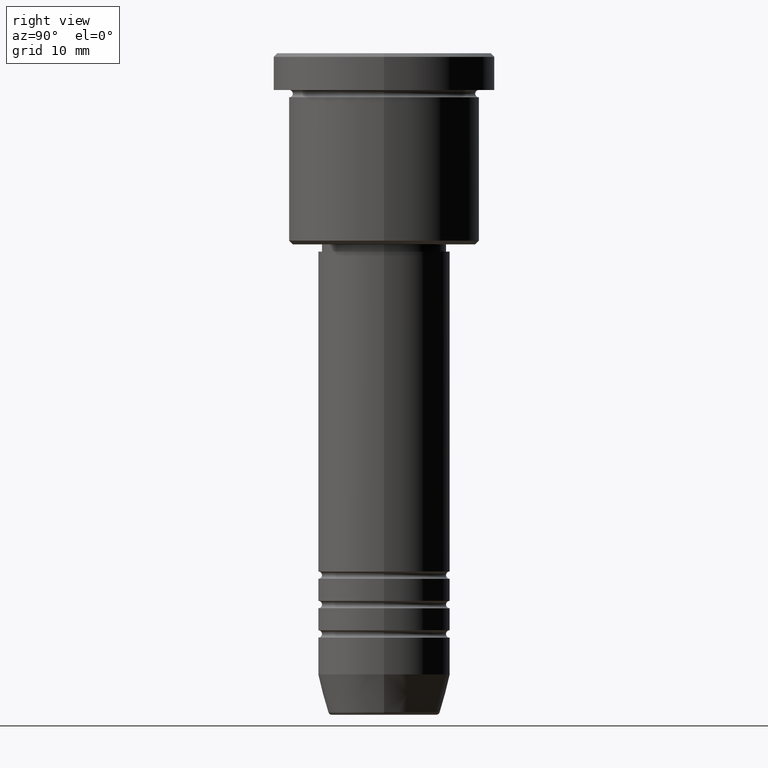
[diagram: clean part render]
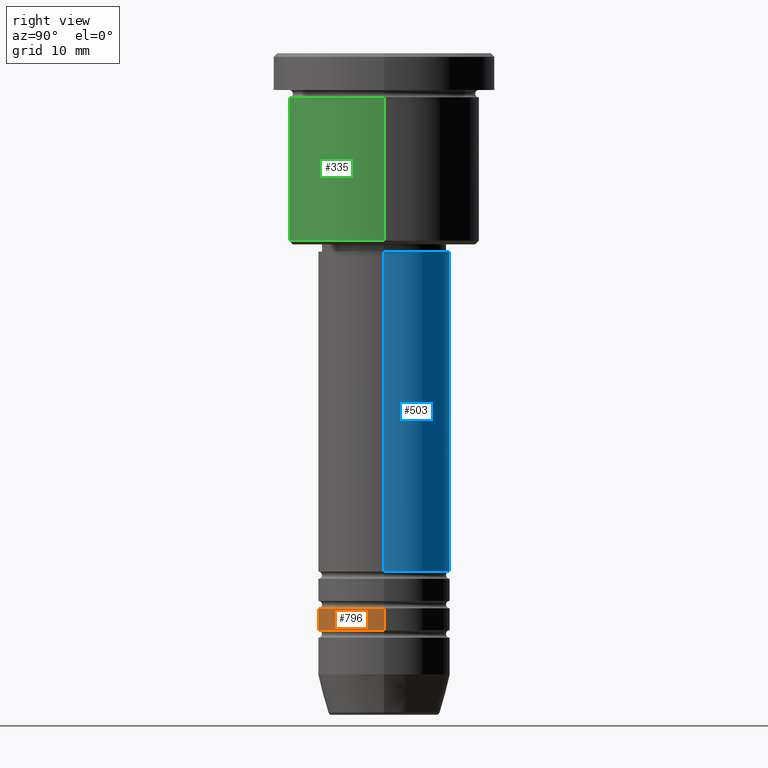
[diagram: same view with three faces highlighted in distinct colors, each labeled with its STEP entity id]
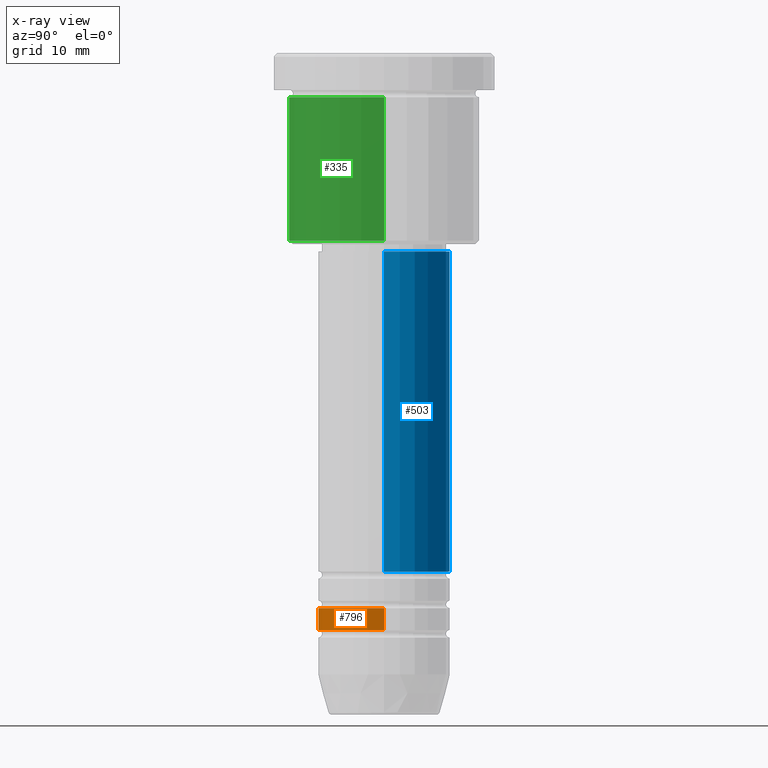
[diagram: x-ray of the same camera — body ghosted, the three highlighted faces saturated]
A machine part, right view with three faces highlighted in distinct colors.
The next image is the same camera in x-ray (body ghosted, the three faces saturated) — at least one of them is partly hidden behind the body in this view.
Their STEP definitions:

[orange] entity #796 — the highlighted cylindrical surface (partial cylindrical patch) has radius 9 mm, axis along (-0, -0, 1).
#12 = VERTEX_POINT ( 'NONE', #69 ) ;
#23 = DIRECTION ( 'NONE',  ( -0.000000000000000000, -0.000000000000000000, 1.000000000000000000 ) ) ;
#29 = CIRCLE ( 'NONE', #155, 9.000000000000000000 ) ;
#69 = CARTESIAN_POINT ( 'NONE',  ( 9.000000000000000000, 0.000000000000000000, -75.49999999999998579 ) ) ;
#81 = VECTOR ( 'NONE', #23, 1000.000000000000000 ) ;
#127 = CARTESIAN_POINT ( 'NONE',  ( -9.000000000000001776, 1.102182119232617911E-15, -78.49999999999997158 ) ) ;
#155 = AXIS2_PLACEMENT_3D ( 'NONE', #278, #361, #365 ) ;
#234 = CIRCLE ( 'NONE', #773, 9.000000000000001776 ) ;
#249 = VERTEX_POINT ( 'NONE', #127 ) ;
#278 = CARTESIAN_POINT ( 'NONE',  ( 0.000000000000000000, 0.000000000000000000, -75.49999999999998579 ) ) ;
#353 = DIRECTION ( 'NONE',  ( -0.000000000000000000, -0.000000000000000000, 1.000000000000000000 ) ) ;
#361 = DIRECTION ( 'NONE',  ( -0.000000000000000000, -0.000000000000000000, 1.000000000000000000 ) ) ;
#365 = DIRECTION ( 'NONE',  ( 1.000000000000000000, 0.000000000000000000, 0.000000000000000000 ) ) ;
#378 = CARTESIAN_POINT ( 'NONE',  ( -9.000000000000001776, 1.102182119232617911E-15, 0.000000000000000000 ) ) ;
#505 = FACE_OUTER_BOUND ( 'NONE', #1121, .T. ) ;
#515 = VERTEX_POINT ( 'NONE', #895 ) ;
#571 = CARTESIAN_POINT ( 'NONE',  ( 9.000000000000001776, 0.000000000000000000, -78.49999999999997158 ) ) ;
#581 = CARTESIAN_POINT ( 'NONE',  ( 0.000000000000000000, 0.000000000000000000, 0.000000000000000000 ) ) ;
#586 = EDGE_CURVE ( 'NONE', #515, #12, #29, .T. ) ;
#672 = ORIENTED_EDGE ( 'NONE', *, *, #1034, .T. ) ;
#705 = LINE ( 'NONE', #912, #987 ) ;
#720 = VERTEX_POINT ( 'NONE', #571 ) ;
#727 = CARTESIAN_POINT ( 'NONE',  ( 0.000000000000000000, 0.000000000000000000, -78.49999999999997158 ) ) ;
#773 = AXIS2_PLACEMENT_3D ( 'NONE', #727, #353, #998 ) ;
#796 = ADVANCED_FACE ( 'NONE', ( #505 ), #1074, .T. ) ;
#802 = DIRECTION ( 'NONE',  ( -0.000000000000000000, -0.000000000000000000, 1.000000000000000000 ) ) ;
#821 = ORIENTED_EDGE ( 'NONE', *, *, #1115, .F. ) ;
#863 = DIRECTION ( 'NONE',  ( 1.000000000000000000, 0.000000000000000000, 0.000000000000000000 ) ) ;
#895 = CARTESIAN_POINT ( 'NONE',  ( -9.000000000000000000, 1.102182119232617714E-15, -75.49999999999998579 ) ) ;
#912 = CARTESIAN_POINT ( 'NONE',  ( 9.000000000000001776, 0.000000000000000000, 0.000000000000000000 ) ) ;
#928 = AXIS2_PLACEMENT_3D ( 'NONE', #581, #1061, #863 ) ;
#981 = EDGE_CURVE ( 'NONE', #249, #720, #234, .T. ) ;
#987 = VECTOR ( 'NONE', #802, 1000.000000000000000 ) ;
#995 = ORIENTED_EDGE ( 'NONE', *, *, #981, .T. ) ;
#998 = DIRECTION ( 'NONE',  ( 1.000000000000000000, 0.000000000000000000, 0.000000000000000000 ) ) ;
#1008 = LINE ( 'NONE', #378, #81 ) ;
#1034 = EDGE_CURVE ( 'NONE', #720, #12, #705, .T. ) ;
#1061 = DIRECTION ( 'NONE',  ( -0.000000000000000000, -0.000000000000000000, 1.000000000000000000 ) ) ;
#1074 = CYLINDRICAL_SURFACE ( 'NONE', #928, 9.000000000000001776 ) ;
#1089 = ORIENTED_EDGE ( 'NONE', *, *, #586, .F. ) ;
#1115 = EDGE_CURVE ( 'NONE', #249, #515, #1008, .T. ) ;
#1121 = EDGE_LOOP ( 'NONE', ( #821, #995, #672, #1089 ) ) ;

[blue] entity #503 — the highlighted cylindrical surface (partial cylindrical patch) has radius 9 mm, axis along (-0, -0, 1).
#27 = AXIS2_PLACEMENT_3D ( 'NONE', #815, #619, #527 ) ;
#41 = EDGE_CURVE ( 'NONE', #44, #524, #951, .T. ) ;
#44 = VERTEX_POINT ( 'NONE', #1051 ) ;
#48 = CIRCLE ( 'NONE', #578, 9.000000000000001776 ) ;
#107 = ORIENTED_EDGE ( 'NONE', *, *, #567, .F. ) ;
#175 = CYLINDRICAL_SURFACE ( 'NONE', #27, 9.000000000000000000 ) ;
#216 = DIRECTION ( 'NONE',  ( 1.000000000000000000, 0.000000000000000000, 0.000000000000000000 ) ) ;
#217 = CARTESIAN_POINT ( 'NONE',  ( -9.000000000000000000, 1.102182119232617714E-15, 0.000000000000000000 ) ) ;
#225 = ORIENTED_EDGE ( 'NONE', *, *, #1118, .T. ) ;
#288 = CARTESIAN_POINT ( 'NONE',  ( 9.000000000000000000, 0.000000000000000000, 0.000000000000000000 ) ) ;
#294 = CARTESIAN_POINT ( 'NONE',  ( 0.000000000000000000, 0.000000000000000000, -70.49999999999998579 ) ) ;
#386 = DIRECTION ( 'NONE',  ( -0.000000000000000000, -0.000000000000000000, 1.000000000000000000 ) ) ;
#393 = AXIS2_PLACEMENT_3D ( 'NONE', #921, #1016, #216 ) ;
#405 = DIRECTION ( 'NONE',  ( -0.000000000000000000, -0.000000000000000000, 1.000000000000000000 ) ) ;
#430 = CARTESIAN_POINT ( 'NONE',  ( 9.000000000000001776, 0.000000000000000000, -70.49999999999998579 ) ) ;
#460 = ORIENTED_EDGE ( 'NONE', *, *, #41, .T. ) ;
#494 = VERTEX_POINT ( 'NONE', #430 ) ;
#503 = ADVANCED_FACE ( 'NONE', ( #1100 ), #175, .T. ) ;
#524 = VERTEX_POINT ( 'NONE', #533 ) ;
#527 = DIRECTION ( 'NONE',  ( 1.000000000000000000, 0.000000000000000000, 0.000000000000000000 ) ) ;
#533 = CARTESIAN_POINT ( 'NONE',  ( -8.999999999999998224, 1.102182119232617714E-15, -26.99999999999999645 ) ) ;
#542 = CARTESIAN_POINT ( 'NONE',  ( 8.999999999999998224, 0.000000000000000000, -26.99999999999999645 ) ) ;
#555 = EDGE_LOOP ( 'NONE', ( #225, #460, #593, #107 ) ) ;
#567 = EDGE_CURVE ( 'NONE', #494, #1109, #800, .T. ) ;
#578 = AXIS2_PLACEMENT_3D ( 'NONE', #294, #386, #733 ) ;
#593 = ORIENTED_EDGE ( 'NONE', *, *, #710, .F. ) ;
#619 = DIRECTION ( 'NONE',  ( -0.000000000000000000, -0.000000000000000000, 1.000000000000000000 ) ) ;
#655 = CIRCLE ( 'NONE', #393, 8.999999999999998224 ) ;
#694 = VECTOR ( 'NONE', #405, 1000.000000000000000 ) ;
#710 = EDGE_CURVE ( 'NONE', #1109, #524, #655, .T. ) ;
#733 = DIRECTION ( 'NONE',  ( 1.000000000000000000, 0.000000000000000000, 0.000000000000000000 ) ) ;
#800 = LINE ( 'NONE', #288, #1130 ) ;
#803 = DIRECTION ( 'NONE',  ( -0.000000000000000000, -0.000000000000000000, 1.000000000000000000 ) ) ;
#815 = CARTESIAN_POINT ( 'NONE',  ( 0.000000000000000000, 0.000000000000000000, 0.000000000000000000 ) ) ;
#921 = CARTESIAN_POINT ( 'NONE',  ( 0.000000000000000000, 0.000000000000000000, -26.99999999999999645 ) ) ;
#951 = LINE ( 'NONE', #217, #694 ) ;
#1016 = DIRECTION ( 'NONE',  ( -0.000000000000000000, -0.000000000000000000, 1.000000000000000000 ) ) ;
#1051 = CARTESIAN_POINT ( 'NONE',  ( -9.000000000000001776, 1.102182119232617911E-15, -70.49999999999998579 ) ) ;
#1100 = FACE_OUTER_BOUND ( 'NONE', #555, .T. ) ;
#1109 = VERTEX_POINT ( 'NONE', #542 ) ;
#1118 = EDGE_CURVE ( 'NONE', #494, #44, #48, .T. ) ;
#1130 = VECTOR ( 'NONE', #803, 1000.000000000000000 ) ;

[green] entity #335 — the highlighted cylindrical surface (partial cylindrical patch) has radius 13 mm, axis along (-0, -0, 1).
#28 = VERTEX_POINT ( 'NONE', #1038 ) ;
#70 = DIRECTION ( 'NONE',  ( -1.000000000000000000, 0.000000000000000000, 0.000000000000000000 ) ) ;
#131 = ORIENTED_EDGE ( 'NONE', *, *, #795, .T. ) ;
#206 = CARTESIAN_POINT ( 'NONE',  ( 0.000000000000000000, 0.000000000000000000, 0.000000000000000000 ) ) ;
#240 = CARTESIAN_POINT ( 'NONE',  ( -13.00000000000000178, 1.592040838891559293E-15, -5.999999999999999112 ) ) ;
#268 = VECTOR ( 'NONE', #708, 1000.000000000000000 ) ;
#335 = ADVANCED_FACE ( 'NONE', ( #389 ), #753, .T. ) ;
#387 = DIRECTION ( 'NONE',  ( -0.000000000000000000, -0.000000000000000000, 1.000000000000000000 ) ) ;
#389 = FACE_OUTER_BOUND ( 'NONE', #1079, .T. ) ;
#480 = LINE ( 'NONE', #654, #848 ) ;
#501 = VERTEX_POINT ( 'NONE', #1178 ) ;
#516 = DIRECTION ( 'NONE',  ( -0.000000000000000000, -0.000000000000000000, 1.000000000000000000 ) ) ;
#576 = DIRECTION ( 'NONE',  ( 1.000000000000000000, 0.000000000000000000, 0.000000000000000000 ) ) ;
#602 = EDGE_CURVE ( 'NONE', #501, #881, #724, .T. ) ;
#614 = AXIS2_PLACEMENT_3D ( 'NONE', #1163, #516, #70 ) ;
#652 = VERTEX_POINT ( 'NONE', #932 ) ;
#654 = CARTESIAN_POINT ( 'NONE',  ( 13.00000000000000178, 0.000000000000000000, 0.000000000000000000 ) ) ;
#667 = EDGE_CURVE ( 'NONE', #28, #652, #480, .T. ) ;
#707 = EDGE_CURVE ( 'NONE', #881, #652, #806, .T. ) ;
#708 = DIRECTION ( 'NONE',  ( -0.000000000000000000, -0.000000000000000000, 1.000000000000000000 ) ) ;
#724 = LINE ( 'NONE', #899, #268 ) ;
#737 = CARTESIAN_POINT ( 'NONE',  ( 0.000000000000000000, 0.000000000000000000, -5.999999999999999112 ) ) ;
#753 = CYLINDRICAL_SURFACE ( 'NONE', #984, 13.00000000000000178 ) ;
#779 = ORIENTED_EDGE ( 'NONE', *, *, #667, .T. ) ;
#795 = EDGE_CURVE ( 'NONE', #501, #28, #945, .T. ) ;
#806 = CIRCLE ( 'NONE', #909, 13.00000000000000178 ) ;
#835 = DIRECTION ( 'NONE',  ( -0.000000000000000000, -0.000000000000000000, 1.000000000000000000 ) ) ;
#848 = VECTOR ( 'NONE', #835, 1000.000000000000000 ) ;
#881 = VERTEX_POINT ( 'NONE', #240 ) ;
#899 = CARTESIAN_POINT ( 'NONE',  ( -13.00000000000000178, 1.592040838891559293E-15, 0.000000000000000000 ) ) ;
#909 = AXIS2_PLACEMENT_3D ( 'NONE', #737, #387, #1114 ) ;
#932 = CARTESIAN_POINT ( 'NONE',  ( 13.00000000000000178, 0.000000000000000000, -5.999999999999999112 ) ) ;
#945 = CIRCLE ( 'NONE', #614, 13.00000000000000178 ) ;
#984 = AXIS2_PLACEMENT_3D ( 'NONE', #206, #1134, #576 ) ;
#1038 = CARTESIAN_POINT ( 'NONE',  ( 13.00000000000000178, 0.000000000000000000, -25.49999999999999645 ) ) ;
#1053 = ORIENTED_EDGE ( 'NONE', *, *, #707, .F. ) ;
#1065 = ORIENTED_EDGE ( 'NONE', *, *, #602, .F. ) ;
#1079 = EDGE_LOOP ( 'NONE', ( #1065, #131, #779, #1053 ) ) ;
#1114 = DIRECTION ( 'NONE',  ( 1.000000000000000000, 0.000000000000000000, 0.000000000000000000 ) ) ;
#1134 = DIRECTION ( 'NONE',  ( -0.000000000000000000, -0.000000000000000000, 1.000000000000000000 ) ) ;
#1163 = CARTESIAN_POINT ( 'NONE',  ( 0.000000000000000000, 0.000000000000000000, -25.49999999999999645 ) ) ;
#1178 = CARTESIAN_POINT ( 'NONE',  ( -13.00000000000000178, 1.592040838891559293E-15, -25.49999999999999645 ) ) ;